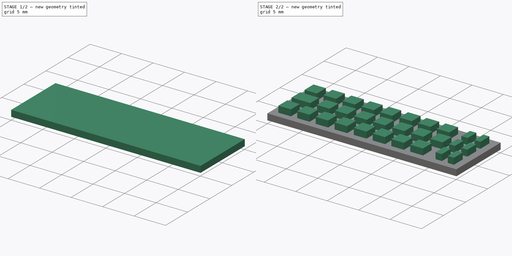
[diagram: build sequence overview — one tinted view per stage of 2, left to right]
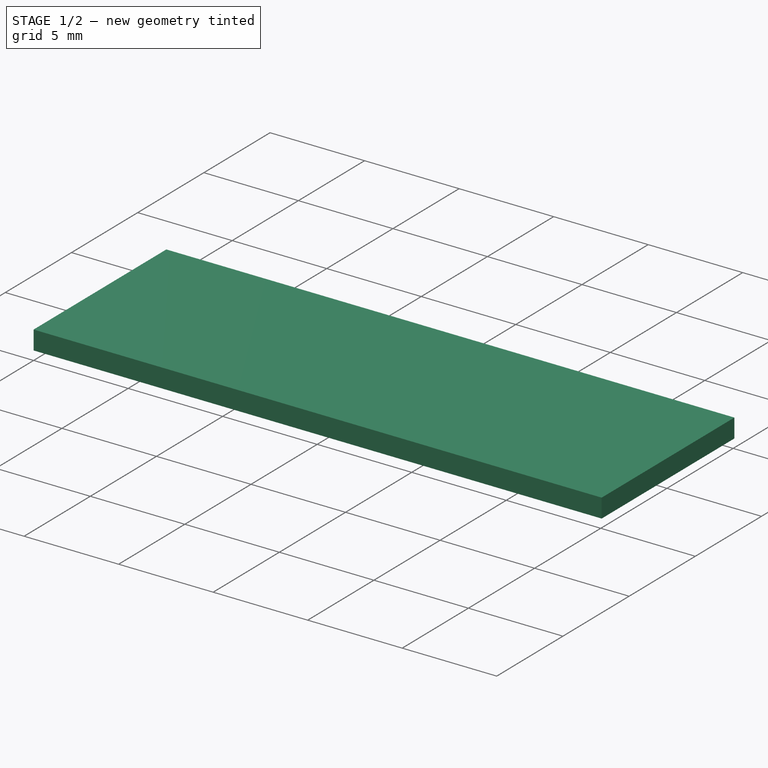
[diagram: stage 1 of 2 — iso view after this stage's code; geometry added in this stage tinted green]
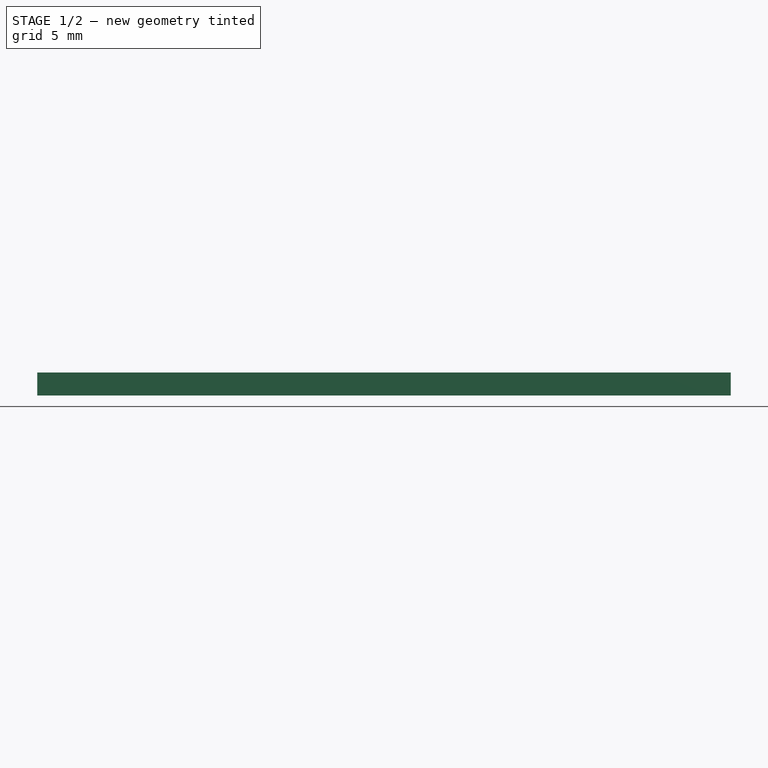
[diagram: stage 1 of 2 — front view after this stage's code; geometry added in this stage tinted green]
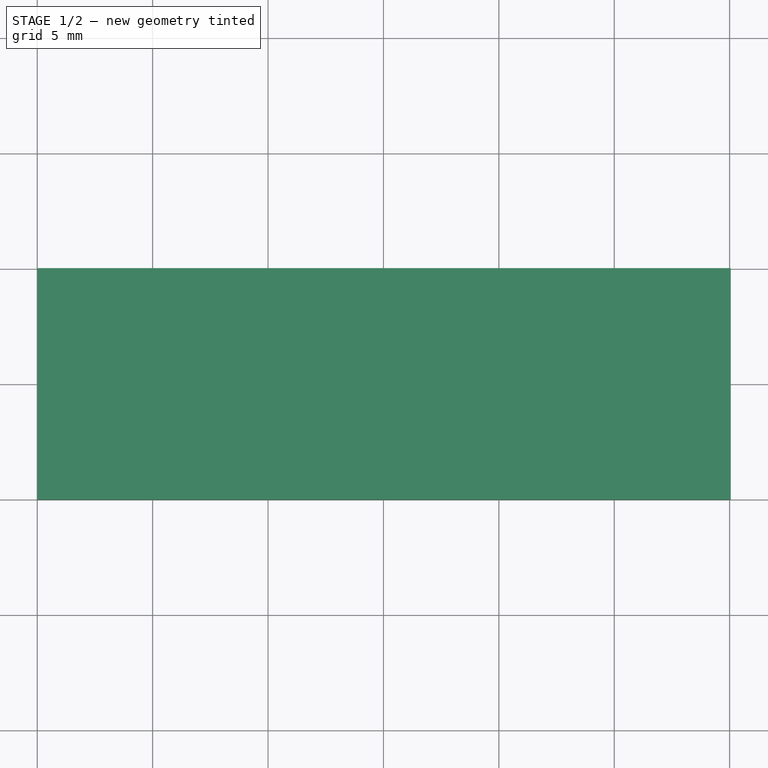
[diagram: stage 1 of 2 — top view after this stage's code; geometry added in this stage tinted green]
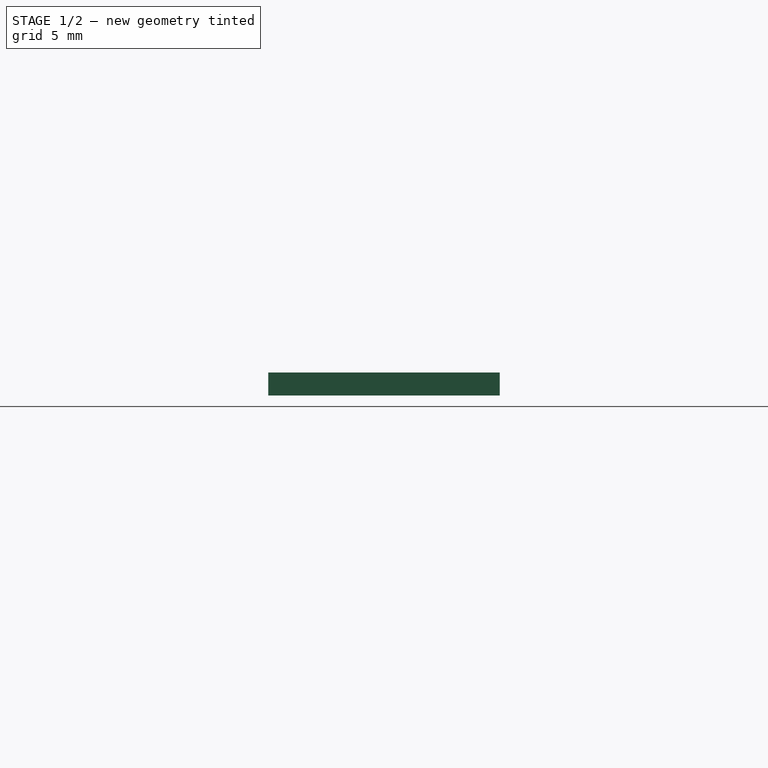
[diagram: stage 1 of 2 — right view after this stage's code; geometry added in this stage tinted green]
FCSTD DOCUMENT  (FreeCAD 0.20R29410 (Git))
Label: free cad projeto
License: All rights reserved
LicenseURL: http://en.wikipedia.org/wiki/All_rights_reserved
objects: PartDesign::Body×2, Sketcher::SketchObject×2, PartDesign::Pad×2, App::Part×1
note: 8 computed .brp shape members not serialized (recipe doc carries the construction recipe); baked Part::Feature solids carry a one-line shape summary decoded from their .brp

FEATURE [PartDesign::Body] Body
  Origin = -> Origin
FEATURE [Sketcher::SketchObject] Sketch
  FullyConstrained = false
  MapMode = 5
  Support = -> [XY_Plane002]
  sketch-geometry (4):
    g0: LineSegment StartX=0 StartY=0 StartZ=0 EndX=30.0478 EndY=0 EndZ=0
    g1: LineSegment StartX=30.0478 StartY=0 StartZ=0 EndX=30.0478 EndY=10.0259 EndZ=0
    g2: LineSegment StartX=30.0478 StartY=10.0259 StartZ=0 EndX=0 EndY=10.0259 EndZ=0
    g3: LineSegment StartX=0 StartY=10.0259 StartZ=0 EndX=0 EndY=0 EndZ=0
  constraints (9):
    c: Coincident(g0,g1)
    c: Coincident(g1,g2)
    c: Coincident(g2,g3)
    c: Coincident(g3,g0)
    c: Horizontal(g0)
    c: Horizontal(g2)
    c: Vertical(g1)
    c: Vertical(g3)
    c: Coincident(g0,g-1)
FEATURE [PartDesign::Pad] Pad
  Direction = (0,0,1)
  Length = 1
  Length2 = 10
  Profile = -> Sketch
  ReferenceAxis = -> Sketch [N_Axis]
  Type = 0
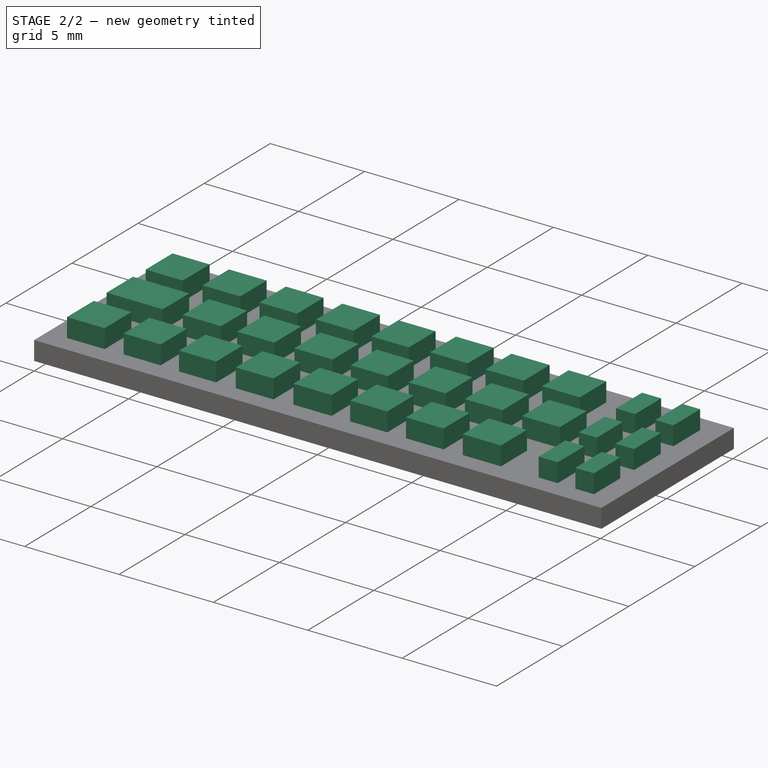
[diagram: stage 2 of 2 — iso view after this stage's code; geometry added in this stage tinted green]
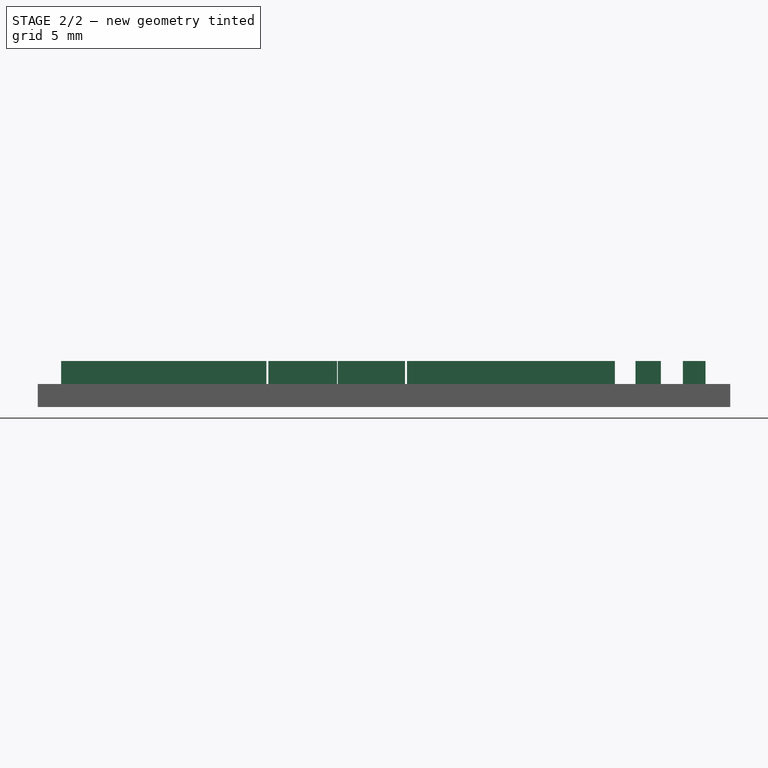
[diagram: stage 2 of 2 — front view after this stage's code; geometry added in this stage tinted green]
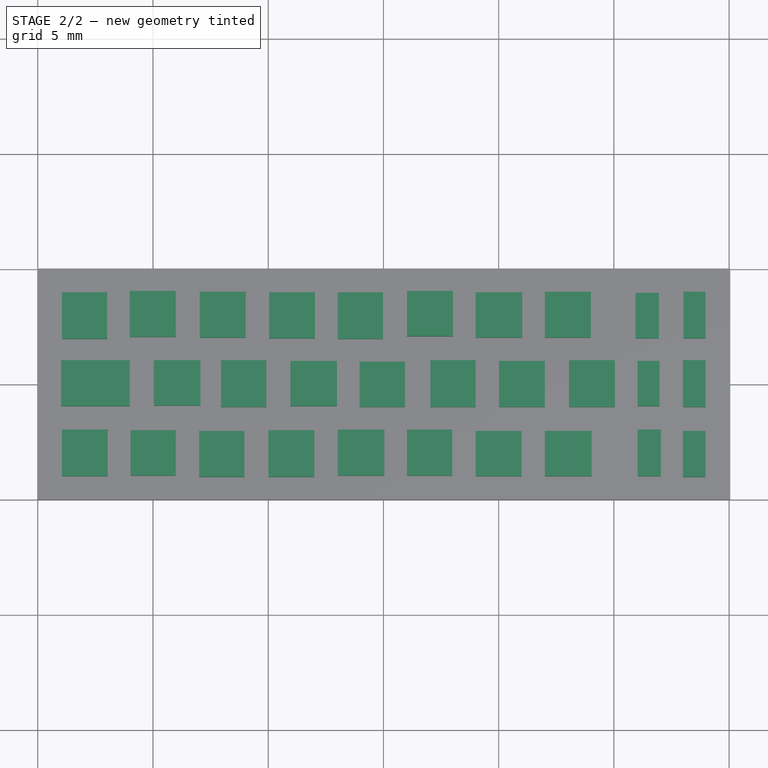
[diagram: stage 2 of 2 — top view after this stage's code; geometry added in this stage tinted green]
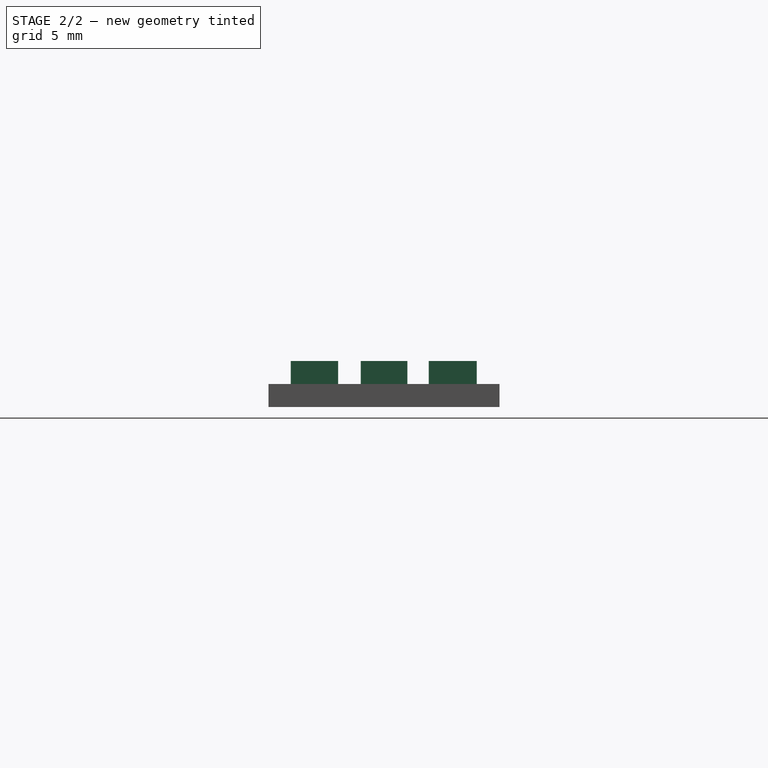
[diagram: stage 2 of 2 — right view after this stage's code; geometry added in this stage tinted green]
FEATURE [Sketcher::SketchObject] Sketch001
  FullyConstrained = false
  MapMode = 5
  Placement = pos=(0,0,1) rot=(0,0,1;0rad)
  Support = -> [Pad]
  sketch-geometry (120):
    g0: LineSegment StartX=1.04349 StartY=0.996925 StartZ=0 EndX=3.03864 EndY=0.996925 EndZ=0
    g1: LineSegment StartX=3.03864 StartY=0.996925 StartZ=0 EndX=3.03864 EndY=3.02185 EndZ=0
    g2: LineSegment StartX=3.03864 StartY=3.02185 StartZ=0 EndX=1.04349 EndY=3.02185 EndZ=0
    g3: LineSegment StartX=1.04349 StartY=3.02185 StartZ=0 EndX=1.04349 EndY=0.996925 EndZ=0
    g4: LineSegment StartX=4.02132 StartY=1.0267 StartZ=0 EndX=5.98668 EndY=1.0267 EndZ=0
    g5: LineSegment StartX=5.98668 StartY=1.0267 StartZ=0 EndX=5.98668 EndY=2.99207 EndZ=0
    g6: LineSegment StartX=5.98668 StartY=2.99207 StartZ=0 EndX=4.02132 EndY=2.99207 EndZ=0
    g7: LineSegment StartX=4.02132 StartY=2.99207 StartZ=0 EndX=4.02132 EndY=1.0267 EndZ=0
    g8: LineSegment StartX=6.99914 StartY=0.967147 StartZ=0 EndX=8.96451 EndY=0.967147 EndZ=0
    g9: LineSegment StartX=8.96451 StartY=0.967147 StartZ=0 EndX=8.96451 EndY=2.96229 EndZ=0
    g10: LineSegment StartX=8.96451 StartY=2.96229 StartZ=0 EndX=6.99914 EndY=2.96229 EndZ=0
    g11: LineSegment StartX=6.99914 StartY=2.96229 StartZ=0 EndX=6.99914 EndY=0.967147 EndZ=0
    g12: LineSegment StartX=10.0067 StartY=0.967147 StartZ=0 EndX=12.0019 EndY=0.967147 EndZ=0
    g13: LineSegment StartX=12.0019 StartY=0.967147 StartZ=0 EndX=12.0019 EndY=2.99207 EndZ=0
    g14: LineSegment StartX=12.0019 StartY=2.99207 StartZ=0 EndX=10.0067 EndY=2.99207 EndZ=0
    g15: LineSegment StartX=10.0067 StartY=2.99207 StartZ=0 EndX=10.0067 EndY=0.967147 EndZ=0
    g16: LineSegment StartX=13.0144 StartY=1.0267 StartZ=0 EndX=15.0393 EndY=1.0267 EndZ=0
    g17: LineSegment StartX=15.0393 StartY=1.0267 StartZ=0 EndX=15.0393 EndY=3.02185 EndZ=0
    g18: LineSegment StartX=15.0393 StartY=3.02185 StartZ=0 EndX=13.0144 EndY=3.02185 EndZ=0
    g19: LineSegment StartX=13.0144 StartY=3.02185 StartZ=0 EndX=13.0144 EndY=1.0267 EndZ=0
    g20: LineSegment StartX=16.022 StartY=1.0267 StartZ=0 EndX=17.9873 EndY=1.0267 EndZ=0
    g21: LineSegment StartX=17.9873 StartY=1.0267 StartZ=0 EndX=17.9873 EndY=3.02185 EndZ=0
    g22: LineSegment StartX=17.9873 StartY=3.02185 StartZ=0 EndX=16.022 EndY=3.02185 EndZ=0
    g23: LineSegment StartX=16.022 StartY=3.02185 StartZ=0 EndX=16.022 EndY=1.0267 EndZ=0
    g24: LineSegment StartX=18.9998 StartY=0.996925 StartZ=0 EndX=20.9949 EndY=0.996925 EndZ=0
    g25: LineSegment StartX=20.9949 StartY=0.996925 StartZ=0 EndX=20.9949 EndY=2.96229 EndZ=0
    g26: LineSegment StartX=20.9949 StartY=2.96229 StartZ=0 EndX=18.9998 EndY=2.96229 EndZ=0
    g27: LineSegment StartX=18.9998 StartY=2.96229 StartZ=0 EndX=18.9998 EndY=0.996925 EndZ=0
    g28: LineSegment StartX=22.0074 StartY=0.996925 StartZ=0 EndX=24.0323 EndY=0.996925 EndZ=0
    g29: LineSegment StartX=24.0323 StartY=0.996925 StartZ=0 EndX=24.0323 EndY=2.96229 EndZ=0
    g30: LineSegment StartX=24.0323 StartY=2.96229 StartZ=0 EndX=22.0074 EndY=2.96229 EndZ=0
    g31: LineSegment StartX=22.0074 StartY=2.96229 StartZ=0 EndX=22.0074 EndY=0.996925 EndZ=0
    g32: LineSegment StartX=28.9755 StartY=0.967147 StartZ=0 EndX=27.9928 EndY=0.967147 EndZ=0
    g33: LineSegment StartX=27.9928 StartY=0.967147 StartZ=0 EndX=27.9928 EndY=2.96229 EndZ=0
    g34: LineSegment StartX=27.9928 StartY=2.96229 StartZ=0 EndX=28.9755 EndY=2.96229 EndZ=0
    g35: LineSegment StartX=28.9755 StartY=2.96229 StartZ=0 EndX=28.9755 EndY=0.967147 EndZ=0
    g36: LineSegment StartX=27.0399 StartY=0.996925 StartZ=0 EndX=26.0275 EndY=0.996925 EndZ=0
    g37: LineSegment StartX=26.0275 StartY=0.996925 StartZ=0 EndX=26.0275 EndY=3.02185 EndZ=0
    g38: LineSegment StartX=26.0275 StartY=3.02185 StartZ=0 EndX=27.0399 EndY=3.02185 EndZ=0
    g39: LineSegment StartX=27.0399 StartY=3.02185 StartZ=0 EndX=27.0399 EndY=0.996925 EndZ=0
    g40: LineSegment StartX=26.9804 StartY=4.03431 StartZ=0 EndX=26.0275 EndY=4.03431 EndZ=0
    g41: LineSegment StartX=26.0275 StartY=4.03431 StartZ=0 EndX=26.0275 EndY=5.99967 EndZ=0
    g42: LineSegment StartX=26.0275 StartY=5.99967 StartZ=0 EndX=26.9804 EndY=5.99967 EndZ=0
    g43: LineSegment StartX=26.9804 StartY=5.99967 StartZ=0 EndX=26.9804 EndY=4.03431 EndZ=0
    g44: LineSegment StartX=28.9755 StartY=4.00453 StartZ=0 EndX=27.9928 EndY=4.00453 EndZ=0
    g45: LineSegment StartX=27.9928 StartY=4.00453 StartZ=0 EndX=27.9928 EndY=6.02945 EndZ=0
    g46: LineSegment StartX=27.9928 StartY=6.02945 StartZ=0 EndX=28.9755 EndY=6.02945 EndZ=0
    g47: LineSegment StartX=28.9755 StartY=6.02945 StartZ=0 EndX=28.9755 EndY=4.00453 EndZ=0
    g48: LineSegment StartX=26.9506 StartY=6.98236 StartZ=0 EndX=25.9381 EndY=6.98236 EndZ=0
    g49: LineSegment StartX=25.9381 StartY=6.98236 StartZ=0 EndX=25.9381 EndY=8.94772 EndZ=0
    g50: LineSegment StartX=25.9381 StartY=8.94772 StartZ=0 EndX=26.9506 EndY=8.94772 EndZ=0
    g51: LineSegment StartX=26.9506 StartY=8.94772 StartZ=0 EndX=26.9506 EndY=6.98236 EndZ=0
    g52: LineSegment StartX=28.9755 StartY=6.98236 StartZ=0 EndX=28.0226 EndY=6.98236 EndZ=0
    g53: LineSegment StartX=28.0226 StartY=6.98236 StartZ=0 EndX=28.0226 EndY=9.00728 EndZ=0
    g54: LineSegment StartX=28.0226 StartY=9.00728 StartZ=0 EndX=28.9755 EndY=9.00728 EndZ=0
    g55: LineSegment StartX=28.9755 StartY=9.00728 StartZ=0 EndX=28.9755 EndY=6.98236 EndZ=0
    g56: LineSegment StartX=1.01371 StartY=4.03431 StartZ=0 EndX=3.99154 EndY=4.03431 EndZ=0
    g57: LineSegment StartX=3.99154 StartY=4.03431 StartZ=0 EndX=3.99154 EndY=6.02945 EndZ=0
    g58: LineSegment StartX=3.99154 StartY=6.02945 StartZ=0 EndX=1.01371 EndY=6.02945 EndZ=0
    g59: LineSegment StartX=1.01371 StartY=6.02945 StartZ=0 EndX=1.01371 EndY=4.03431 EndZ=0
    g60: LineSegment StartX=1.04349 StartY=6.95258 StartZ=0 EndX=3.00886 EndY=6.95258 EndZ=0
    g61: LineSegment StartX=3.00886 StartY=6.95258 StartZ=0 EndX=3.00886 EndY=8.9775 EndZ=0
    g62: LineSegment StartX=3.00886 StartY=8.9775 StartZ=0 EndX=1.04349 EndY=8.9775 EndZ=0
    g63: LineSegment StartX=1.04349 StartY=8.9775 StartZ=0 EndX=1.04349 EndY=6.95258 EndZ=0
    g64: LineSegment StartX=3.99154 StartY=7.04191 StartZ=0 EndX=5.98668 EndY=7.04191 EndZ=0
    g65: LineSegment StartX=5.98668 StartY=7.04191 StartZ=0 EndX=5.98668 EndY=9.03706 EndZ=0
    g66: LineSegment StartX=5.98668 StartY=9.03706 StartZ=0 EndX=3.99154 EndY=9.03706 EndZ=0
    g67: LineSegment StartX=3.99154 StartY=9.03706 StartZ=0 EndX=3.99154 EndY=7.04191 EndZ=0
    g68: LineSegment StartX=5.03378 StartY=6.02945 StartZ=0 EndX=7.0587 EndY=6.02945 EndZ=0
    g69: LineSegment StartX=7.0587 StartY=6.02945 StartZ=0 EndX=7.0587 EndY=4.06409 EndZ=0
    g70: LineSegment StartX=7.0587 StartY=4.06409 StartZ=0 EndX=5.03378 EndY=4.06409 EndZ=0
    g71: LineSegment StartX=5.03378 StartY=4.06409 StartZ=0 EndX=5.03378 EndY=6.02945 EndZ=0
    g72: LineSegment StartX=7.95205 StartY=6.02945 StartZ=0 EndX=9.91741 EndY=6.02945 EndZ=0
    g73: LineSegment StartX=9.91741 StartY=6.02945 StartZ=0 EndX=9.91741 EndY=4.00453 EndZ=0
    g74: LineSegment StartX=9.91741 StartY=4.00453 StartZ=0 EndX=7.95205 EndY=4.00453 EndZ=0
    g75: LineSegment StartX=7.95205 StartY=4.00453 StartZ=0 EndX=7.95205 EndY=6.02945 EndZ=0
    g76: LineSegment StartX=10.9597 StartY=5.99967 StartZ=0 EndX=12.9846 EndY=5.99967 EndZ=0
    g77: LineSegment StartX=12.9846 StartY=5.99967 StartZ=0 EndX=12.9846 EndY=4.03431 EndZ=0
    g78: LineSegment StartX=12.9846 StartY=4.03431 StartZ=0 EndX=10.9597 EndY=4.03431 EndZ=0
    g79: LineSegment StartX=10.9597 StartY=4.03431 StartZ=0 EndX=10.9597 EndY=5.99967 EndZ=0
    g80: LineSegment StartX=13.9673 StartY=5.9699 StartZ=0 EndX=15.9326 EndY=5.9699 EndZ=0
    g81: LineSegment StartX=15.9326 StartY=5.9699 StartZ=0 EndX=15.9326 EndY=4.00453 EndZ=0
    g82: LineSegment StartX=15.9326 StartY=4.00453 StartZ=0 EndX=13.9673 EndY=4.00453 EndZ=0
    g83: LineSegment StartX=13.9673 StartY=4.00453 StartZ=0 EndX=13.9673 EndY=5.9699 EndZ=0
    g84: LineSegment StartX=17.0344 StartY=6.02945 StartZ=0 EndX=18.9998 EndY=6.02945 EndZ=0
    g85: LineSegment StartX=18.9998 StartY=6.02945 StartZ=0 EndX=18.9998 EndY=4.00453 EndZ=0
    g86: LineSegment StartX=18.9998 StartY=4.00453 StartZ=0 EndX=17.0344 EndY=4.00453 EndZ=0
    g87: LineSegment StartX=17.0344 StartY=4.00453 StartZ=0 EndX=17.0344 EndY=6.02945 EndZ=0
    g88: LineSegment StartX=20.0122 StartY=5.99967 StartZ=0 EndX=22.0074 EndY=5.99967 EndZ=0
    g89: LineSegment StartX=22.0074 StartY=5.99967 StartZ=0 EndX=22.0074 EndY=4.00453 EndZ=0
    g90: LineSegment StartX=22.0074 StartY=4.00453 StartZ=0 EndX=20.0122 EndY=4.00453 EndZ=0
    g91: LineSegment StartX=20.0122 StartY=4.00453 StartZ=0 EndX=20.0122 EndY=5.99967 EndZ=0
    g92: LineSegment StartX=23.0496 StartY=6.02945 StartZ=0 EndX=25.0448 EndY=6.02945 EndZ=0
    g93: LineSegment StartX=25.0448 StartY=6.02945 StartZ=0 EndX=25.0448 EndY=4.00453 EndZ=0
    g94: LineSegment StartX=25.0448 StartY=4.00453 StartZ=0 EndX=23.0496 EndY=4.00453 EndZ=0
    g95: LineSegment StartX=23.0496 StartY=4.00453 StartZ=0 EndX=23.0496 EndY=6.02945 EndZ=0
    g96: LineSegment StartX=7.02892 StartY=9.00728 StartZ=0 EndX=9.02407 EndY=9.00728 EndZ=0
    g97: LineSegment StartX=9.02407 StartY=9.00728 StartZ=0 EndX=9.02407 EndY=7.01213 EndZ=0
    g98: LineSegment StartX=9.02407 StartY=7.01213 StartZ=0 EndX=7.02892 EndY=7.01213 EndZ=0
    g99: LineSegment StartX=7.02892 StartY=7.01213 StartZ=0 EndX=7.02892 EndY=9.00728 EndZ=0
    g100: LineSegment StartX=10.0365 StartY=8.9775 StartZ=0 EndX=12.0317 EndY=8.9775 EndZ=0
    g101: LineSegment StartX=12.0317 StartY=8.9775 StartZ=0 EndX=12.0317 EndY=6.98236 EndZ=0
    g102: LineSegment StartX=12.0317 StartY=6.98236 StartZ=0 EndX=10.0365 EndY=6.98236 EndZ=0
    g103: LineSegment StartX=10.0365 StartY=6.98236 StartZ=0 EndX=10.0365 EndY=8.9775 EndZ=0
    g104: LineSegment StartX=13.0144 StartY=8.9775 StartZ=0 EndX=14.9797 EndY=8.9775 EndZ=0
    g105: LineSegment StartX=14.9797 StartY=8.9775 StartZ=0 EndX=14.9797 EndY=6.95258 EndZ=0
    g106: LineSegment StartX=14.9797 StartY=6.95258 StartZ=0 EndX=13.0144 EndY=6.95258 EndZ=0
    g107: LineSegment StartX=13.0144 StartY=6.95258 StartZ=0 EndX=13.0144 EndY=8.9775 EndZ=0
    g108: LineSegment StartX=16.022 StartY=9.03706 StartZ=0 EndX=18.0171 EndY=9.03706 EndZ=0
    g109: LineSegment StartX=18.0171 StartY=9.03706 StartZ=0 EndX=18.0171 EndY=7.07169 EndZ=0
    g110: LineSegment StartX=18.0171 StartY=7.07169 StartZ=0 EndX=16.022 EndY=7.07169 EndZ=0
    g111: LineSegment StartX=16.022 StartY=7.07169 StartZ=0 EndX=16.022 EndY=9.03706 EndZ=0
    g112: LineSegment StartX=18.9998 StartY=8.9775 StartZ=0 EndX=21.0247 EndY=8.9775 EndZ=0
    g113: LineSegment StartX=21.0247 StartY=8.9775 StartZ=0 EndX=21.0247 EndY=7.01213 EndZ=0
    g114: LineSegment StartX=21.0247 StartY=7.01213 StartZ=0 EndX=18.9998 EndY=7.01213 EndZ=0
    g115: LineSegment StartX=18.9998 StartY=7.01213 StartZ=0 EndX=18.9998 EndY=8.9775 EndZ=0
    g116: LineSegment StartX=22.0074 StartY=9.00728 StartZ=0 EndX=24.0025 EndY=9.00728 EndZ=0
    g117: LineSegment StartX=24.0025 StartY=9.00728 StartZ=0 EndX=24.0025 EndY=7.01213 EndZ=0
    g118: LineSegment StartX=24.0025 StartY=7.01213 StartZ=0 EndX=22.0074 EndY=7.01213 EndZ=0
    g119: LineSegment StartX=22.0074 StartY=7.01213 StartZ=0 EndX=22.0074 EndY=9.00728 EndZ=0
  constraints (240):
    c: Coincident(g0,g1)
    c: Coincident(g1,g2)
    c: Coincident(g2,g3)
    c: Coincident(g3,g0)
    c: Horizontal(g0)
    c: Horizontal(g2)
    c: Vertical(g1)
    c: Vertical(g3)
    c: Coincident(g4,g5)
    c: Coincident(g5,g6)
    c: Coincident(g6,g7)
    c: Coincident(g7,g4)
    c: Horizontal(g4)
    c: Horizontal(g6)
    c: Vertical(g5)
    c: Vertical(g7)
    c: Coincident(g8,g9)
    c: Coincident(g9,g10)
    c: Coincident(g10,g11)
    c: Coincident(g11,g8)
    c: Horizontal(g8)
    c: Horizontal(g10)
    c: Vertical(g9)
    c: Vertical(g11)
    c: Coincident(g12,g13)
    c: Coincident(g13,g14)
    c: Coincident(g14,g15)
    c: Coincident(g15,g12)
    c: Horizontal(g12)
    c: Horizontal(g14)
    c: Vertical(g13)
    c: Vertical(g15)
    c: Coincident(g16,g17)
    c: Coincident(g17,g18)
    c: Coincident(g18,g19)
    c: Coincident(g19,g16)
    c: Horizontal(g16)
    c: Horizontal(g18)
    c: Vertical(g17)
    c: Vertical(g19)
    c: Coincident(g20,g21)
    c: Coincident(g21,g22)
    c: Coincident(g22,g23)
    c: Coincident(g23,g20)
    c: Horizontal(g20)
    c: Horizontal(g22)
    c: Vertical(g21)
    c: Vertical(g23)
    c: Coincident(g24,g25)
    c: Coincident(g25,g26)
    c: Coincident(g26,g27)
    c: Coincident(g27,g24)
    c: Horizontal(g24)
    c: Horizontal(g26)
    c: Vertical(g25)
    c: Vertical(g27)
    c: Coincident(g28,g29)
    c: Coincident(g29,g30)
    c: Coincident(g30,g31)
    c: Coincident(g31,g28)
    c: Horizontal(g28)
    c: Horizontal(g30)
    c: Vertical(g29)
    c: Vertical(g31)
    c: Coincident(g32,g33)
    c: Coincident(g33,g34)
    c: Coincident(g34,g35)
    c: Coincident(g35,g32)
    c: Horizontal(g32)
    c: Horizontal(g34)
    c: Vertical(g33)
    c: Vertical(g35)
    c: Coincident(g36,g37)
    c: Coincident(g37,g38)
    c: Coincident(g38,g39)
    c: Coincident(g39,g36)
    c: Horizontal(g36)
    c: Horizontal(g38)
    c: Vertical(g37)
    c: Vertical(g39)
    c: Coincident(g40,g41)
    c: Coincident(g41,g42)
    c: Coincident(g42,g43)
    c: Coincident(g43,g40)
    c: Horizontal(g40)
    c: Horizontal(g42)
    c: Vertical(g41)
    c: Vertical(g43)
    c: Coincident(g44,g45)
    c: Coincident(g45,g46)
    c: Coincident(g46,g47)
    c: Coincident(g47,g44)
    c: Horizontal(g44)
    c: Horizontal(g46)
    c: Vertical(g45)
    c: Vertical(g47)
    c: Coincident(g48,g49)
    c: Coincident(g49,g50)
    c: Coincident(g50,g51)
    c: Coincident(g51,g48)
    c: Horizontal(g48)
    c: Horizontal(g50)
    c: Vertical(g49)
    c: Vertical(g51)
    c: Coincident(g52,g53)
    c: Coincident(g53,g54)
    c: Coincident(g54,g55)
    c: Coincident(g55,g52)
    c: Horizontal(g52)
    c: Horizontal(g54)
    c: Vertical(g53)
    c: Vertical(g55)
    c: Coincident(g56,g57)
    c: Coincident(g57,g58)
    c: Coincident(g58,g59)
    c: Coincident(g59,g56)
    c: Horizontal(g56)
    c: Horizontal(g58)
    c: Vertical(g57)
    c: Vertical(g59)
    c: Coincident(g60,g61)
    c: Coincident(g61,g62)
    c: Coincident(g62,g63)
    c: Coincident(g63,g60)
    c: Horizontal(g60)
    c: Horizontal(g62)
    c: Vertical(g61)
    c: Vertical(g63)
    c: Coincident(g64,g65)
    c: Coincident(g65,g66)
    c: Coincident(g66,g67)
    c: Coincident(g67,g64)
    c: Horizontal(g64)
    c: Horizontal(g66)
    c: Vertical(g65)
    c: Vertical(g67)
    c: Coincident(g68,g69)
    c: Coincident(g69,g70)
    c: Coincident(g70,g71)
    c: Coincident(g71,g68)
    c: Horizontal(g68)
    c: Horizontal(g70)
    c: Vertical(g69)
    c: Vertical(g71)
    c: Coincident(g72,g73)
    c: Coincident(g73,g74)
    c: Coincident(g74,g75)
    c: Coincident(g75,g72)
    c: Horizontal(g72)
    c: Horizontal(g74)
    c: Vertical(g73)
    c: Vertical(g75)
    c: Coincident(g76,g77)
    c: Coincident(g77,g78)
    c: Coincident(g78,g79)
    c: Coincident(g79,g76)
    c: Horizontal(g76)
    c: Horizontal(g78)
    c: Vertical(g77)
    c: Vertical(g79)
    c: Coincident(g80,g81)
    c: Coincident(g81,g82)
    c: Coincident(g82,g83)
    c: Coincident(g83,g80)
    c: Horizontal(g80)
    c: Horizontal(g82)
    c: Vertical(g81)
    c: Vertical(g83)
    c: Coincident(g84,g85)
    c: Coincident(g85,g86)
    c: Coincident(g86,g87)
    c: Coincident(g87,g84)
    c: Horizontal(g84)
    c: Horizontal(g86)
    c: Vertical(g85)
    c: Vertical(g87)
    c: Coincident(g88,g89)
    c: Coincident(g89,g90)
    c: Coincident(g90,g91)
    c: Coincident(g91,g88)
    c: Horizontal(g88)
    c: Horizontal(g90)
    c: Vertical(g89)
    c: Vertical(g91)
    c: Coincident(g92,g93)
    c: Coincident(g93,g94)
    c: Coincident(g94,g95)
    c: Coincident(g95,g92)
    c: Horizontal(g92)
    c: Horizontal(g94)
    c: Vertical(g93)
    c: Vertical(g95)
    c: Coincident(g96,g97)
    c: Coincident(g97,g98)
    c: Coincident(g98,g99)
    c: Coincident(g99,g96)
    c: Horizontal(g96)
    c: Horizontal(g98)
    c: Vertical(g97)
    c: Vertical(g99)
    c: Coincident(g100,g101)
    c: Coincident(g101,g102)
    c: Coincident(g102,g103)
    c: Coincident(g103,g100)
    c: Horizontal(g100)
    c: Horizontal(g102)
    c: Vertical(g101)
    c: Vertical(g103)
    c: Coincident(g104,g105)
    c: Coincident(g105,g106)
    c: Coincident(g106,g107)
    c: Coincident(g107,g104)
    c: Horizontal(g104)
    c: Horizontal(g106)
    c: Vertical(g105)
    c: Vertical(g107)
    c: Coincident(g108,g109)
    c: Coincident(g109,g110)
    c: Coincident(g110,g111)
    c: Coincident(g111,g108)
    c: Horizontal(g108)
    c: Horizontal(g110)
    c: Vertical(g109)
    c: Vertical(g111)
    c: Coincident(g112,g113)
    c: Coincident(g113,g114)
    c: Coincident(g114,g115)
    c: Coincident(g115,g112)
    c: Horizontal(g112)
    c: Horizontal(g114)
    c: Vertical(g113)
    c: Vertical(g115)
    c: Coincident(g116,g117)
    c: Coincident(g117,g118)
    c: Coincident(g118,g119)
    c: Coincident(g119,g116)
    c: Horizontal(g116)
    c: Horizontal(g118)
    c: Vertical(g117)
    c: Vertical(g119)
FEATURE [PartDesign::Pad] Pad001
  BaseFeature = -> Pad
  Direction = (0,0,1)
  Length = 1
  Length2 = 10
  Profile = -> Sketch001
  ReferenceAxis = -> Sketch001 [N_Axis]
  Type = 0
FEATURE [PartDesign::Body] Body001
  Group = -> [Sketch,Pad,Sketch001,Pad001]
  Origin = -> Origin002
  Tip = -> Pad001
FEATURE [App::Part] Part
  Group = -> [Body001]
  Origin = -> Origin001
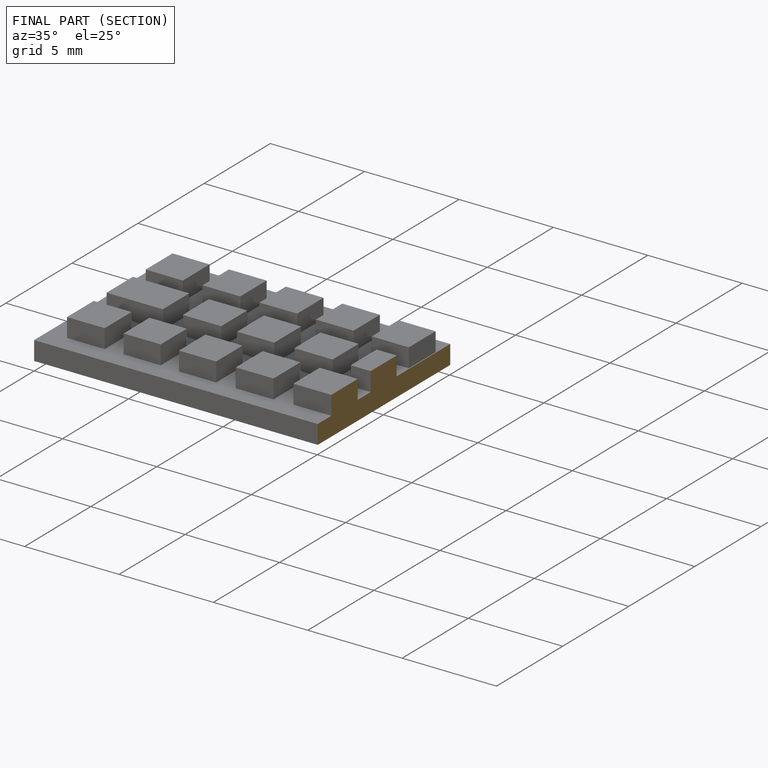
[diagram: finished part — half-section view (interior)]
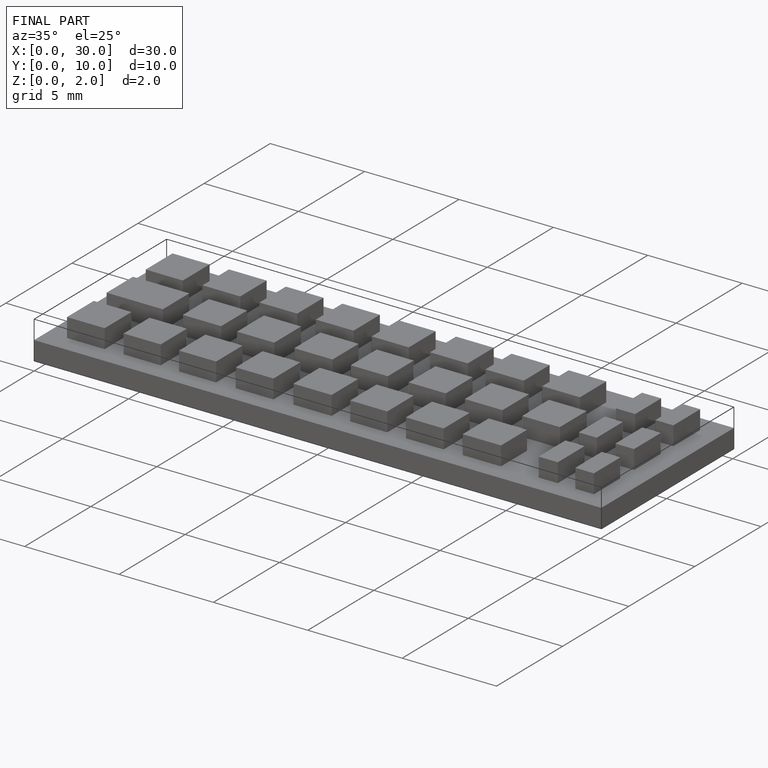
[diagram: finished part — iso view with bounding-box wireframe]
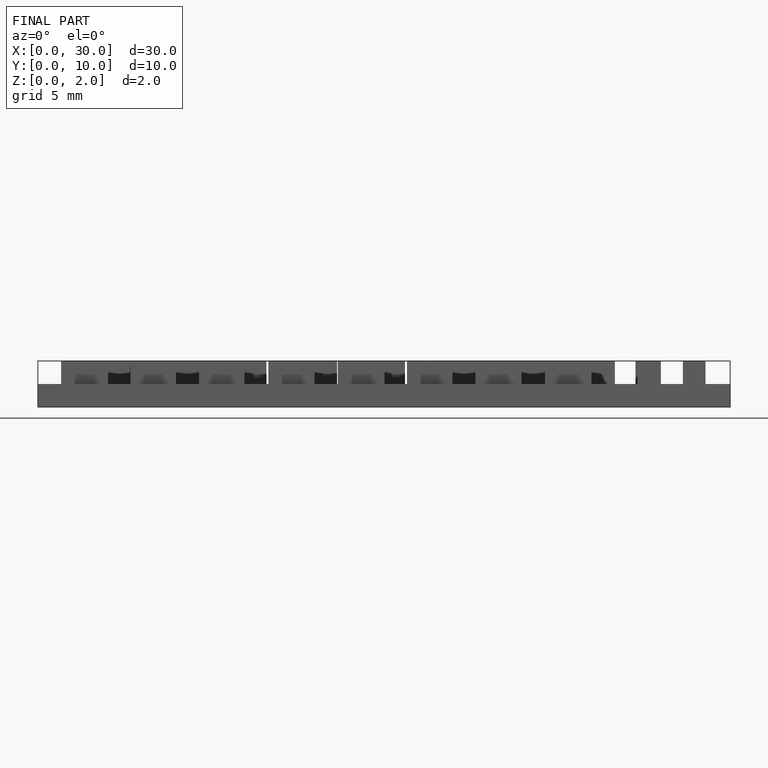
[diagram: finished part — front view with bounding-box wireframe]
